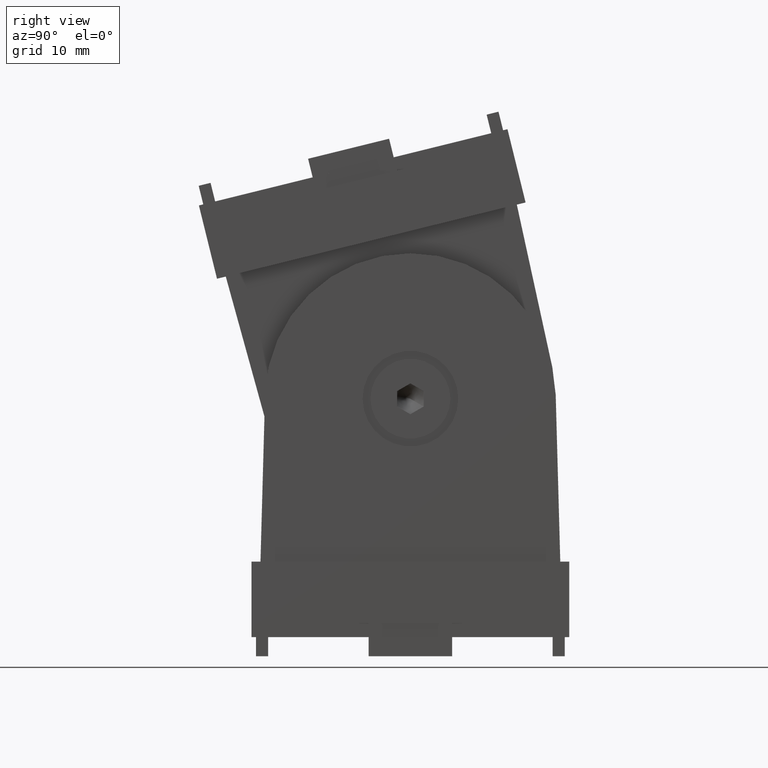
[diagram: clean part render]
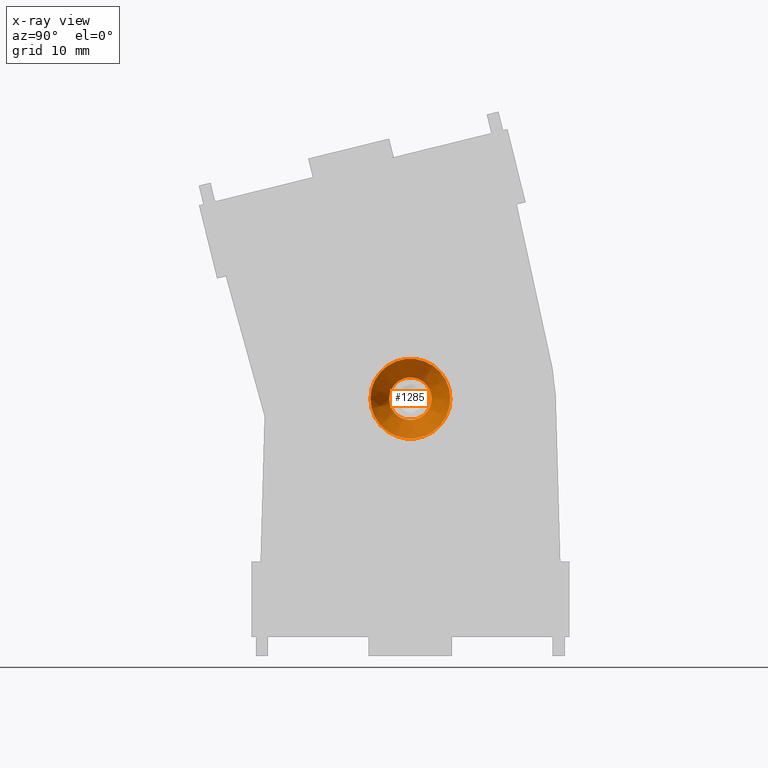
[diagram: x-ray — body ghosted, one internal face saturated and labeled with its STEP entity id]
A machine part, right view, then the same camera in x-ray: the body is ghosted and one INTERNAL B-rep face — a face not visible from any outside direction — is saturated and labeled: STEP entity #1285.
In plain terms, the highlighted conical surface has half-angle 45 deg.
Its self-contained STEP definition (entity closure, byte-faithful):
#35=CONICAL_SURFACE('',#1380,2.8825,45.);
#356=FACE_BOUND('',#524,.T.);
#428=FACE_OUTER_BOUND('',#523,.T.);
#523=EDGE_LOOP('',(#1152));
#524=EDGE_LOOP('',(#1153));
#541=CIRCLE('',#1367,2.);
#543=CIRCLE('',#1379,3.76500000000001);
#644=VERTEX_POINT('',#2029);
#658=VERTEX_POINT('',#2085);
#803=EDGE_CURVE('',#644,#644,#541,.T.);
#823=EDGE_CURVE('',#658,#658,#543,.T.);
#1152=ORIENTED_EDGE('',*,*,#803,.F.);
#1153=ORIENTED_EDGE('',*,*,#823,.T.);
#1285=ADVANCED_FACE('',(#428,#356),#35,.T.);
#1367=AXIS2_PLACEMENT_3D('',#2030,#1672,#1673);
#1379=AXIS2_PLACEMENT_3D('',#2086,#1708,#1709);
#1380=AXIS2_PLACEMENT_3D('',#2087,#1710,#1711);
#1672=DIRECTION('center_axis',(1.,-5.49265447474917E-32,0.));
#1673=DIRECTION('ref_axis',(0.,1.,0.));
#1708=DIRECTION('center_axis',(1.,-5.49265447474917E-32,0.));
#1709=DIRECTION('ref_axis',(0.,1.,0.));
#1710=DIRECTION('center_axis',(-1.,5.49265447474917E-32,0.));
#1711=DIRECTION('ref_axis',(0.,1.,0.));
#2029=CARTESIAN_POINT('',(2.47999999999999,2.,0.));
#2030=CARTESIAN_POINT('Origin',(2.47999999999999,7.3235392996662E-33,0.));
#2085=CARTESIAN_POINT('',(0.714999999999981,3.76500000000001,0.));
#2086=CARTESIAN_POINT('Origin',(0.714999999999981,1.0426889077899E-31,0.));
#2087=CARTESIAN_POINT('Origin',(1.59749999999999,5.57962150393279E-32,0.));